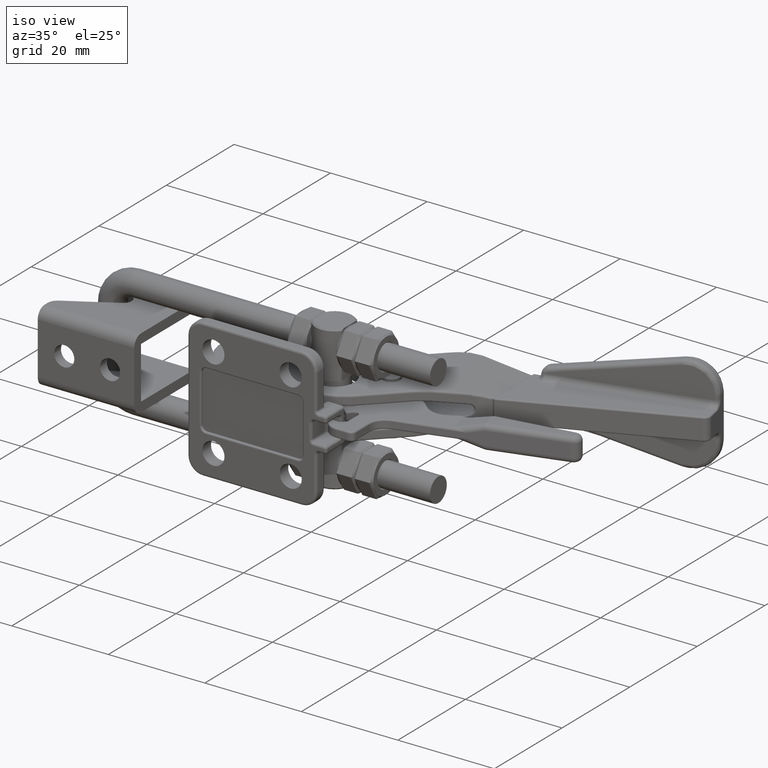
[diagram: clean part render]
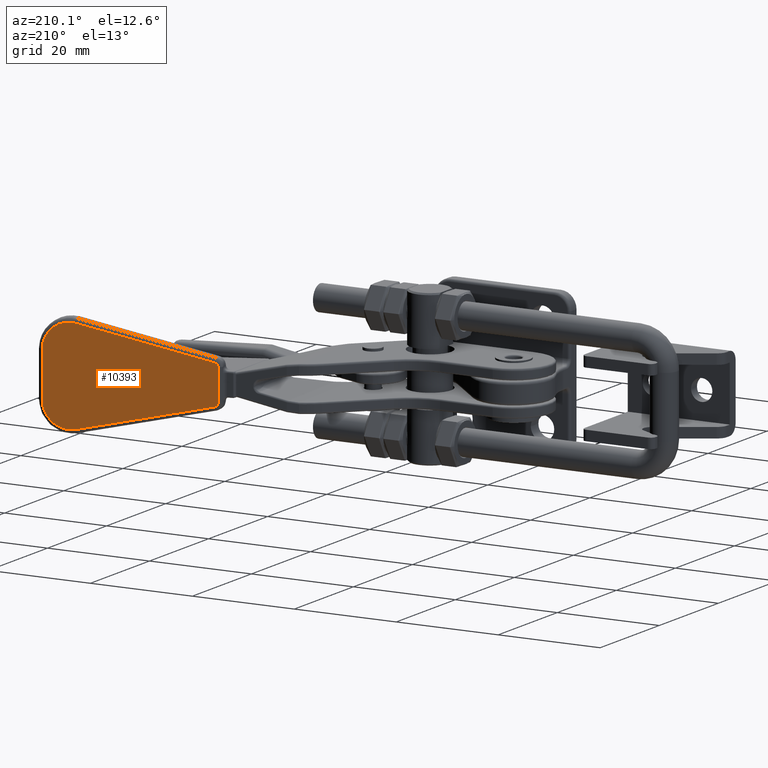
[diagram: tour spotlight — one face highlighted and labeled with its STEP entity id]
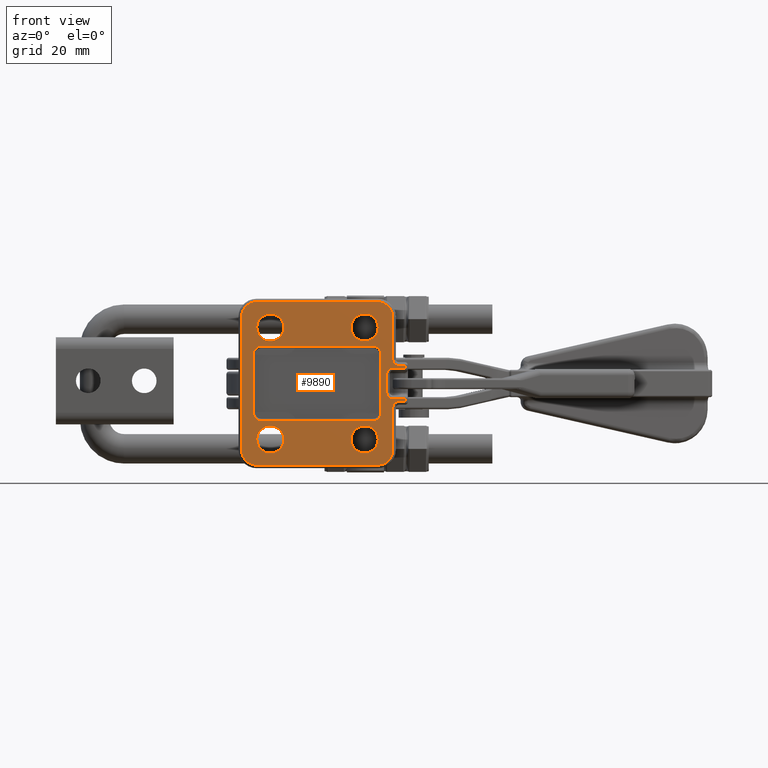
[diagram: tour spotlight — one face highlighted and labeled with its STEP entity id]
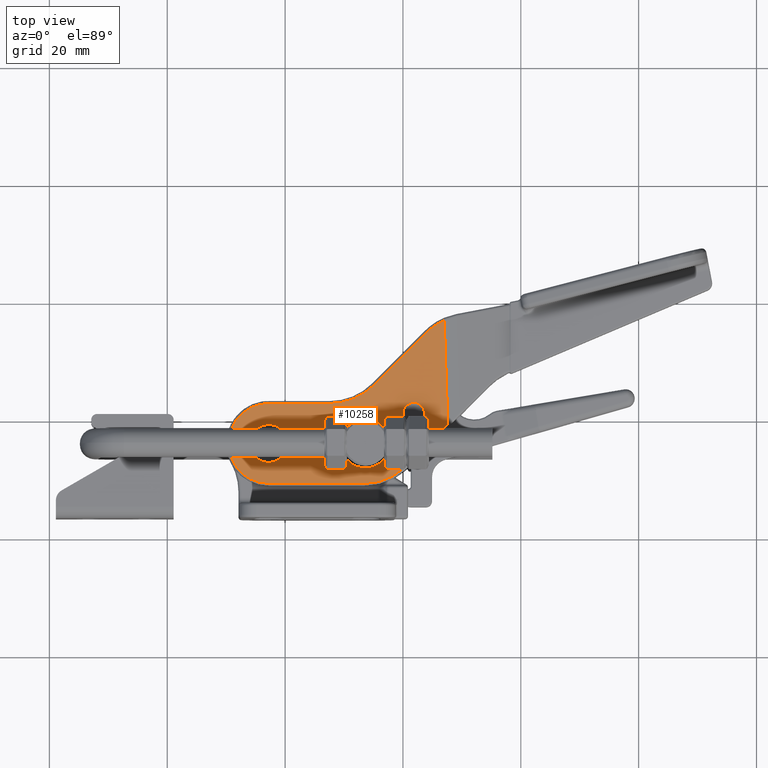
[diagram: tour spotlight — one face highlighted and labeled with its STEP entity id]
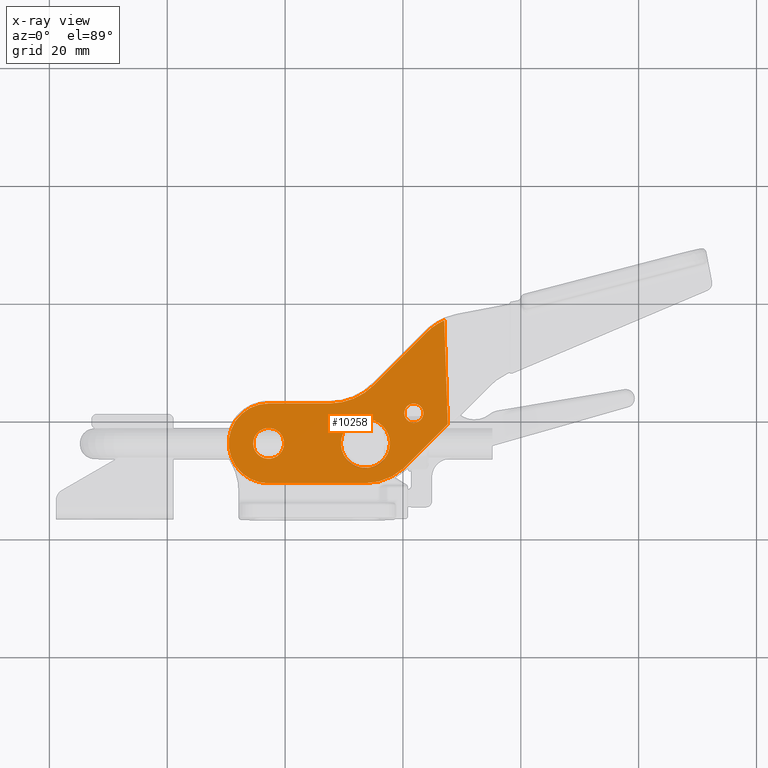
[diagram: x-ray of the same camera — body ghosted, this tour face saturated]
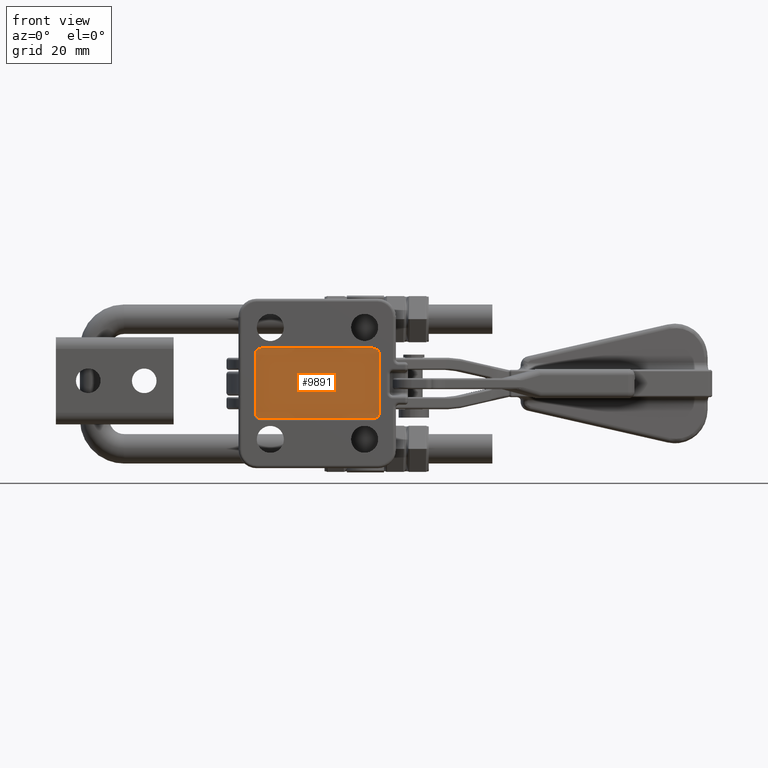
[diagram: tour spotlight — one face highlighted and labeled with its STEP entity id]
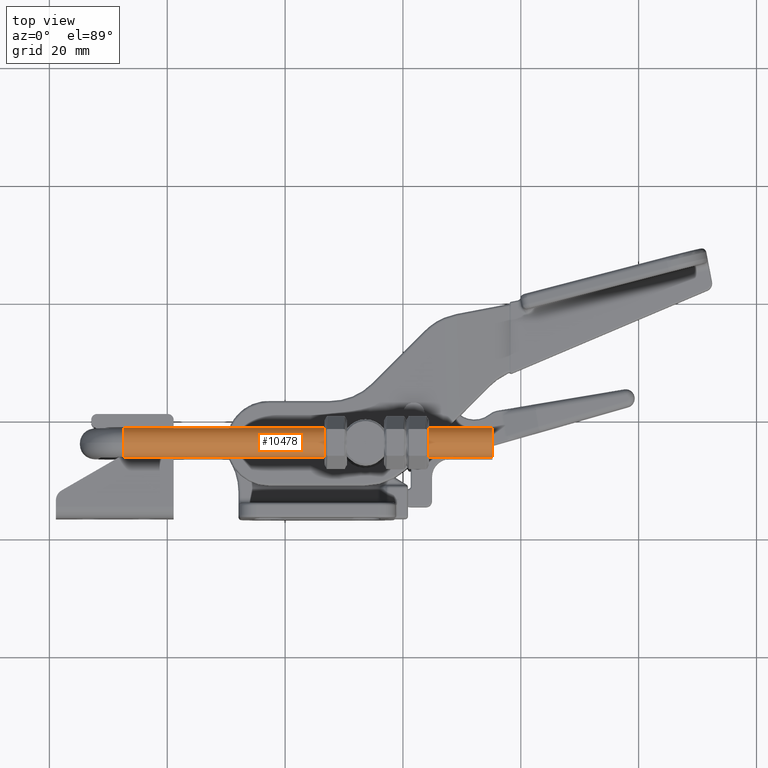
[diagram: tour spotlight — one face highlighted and labeled with its STEP entity id]
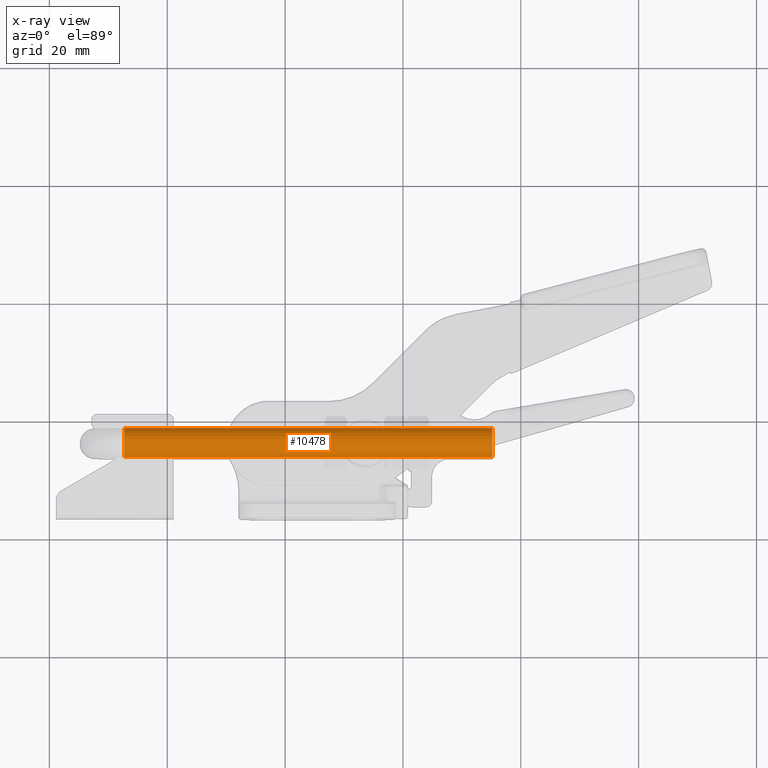
[diagram: x-ray of the same camera — body ghosted, this tour face saturated]
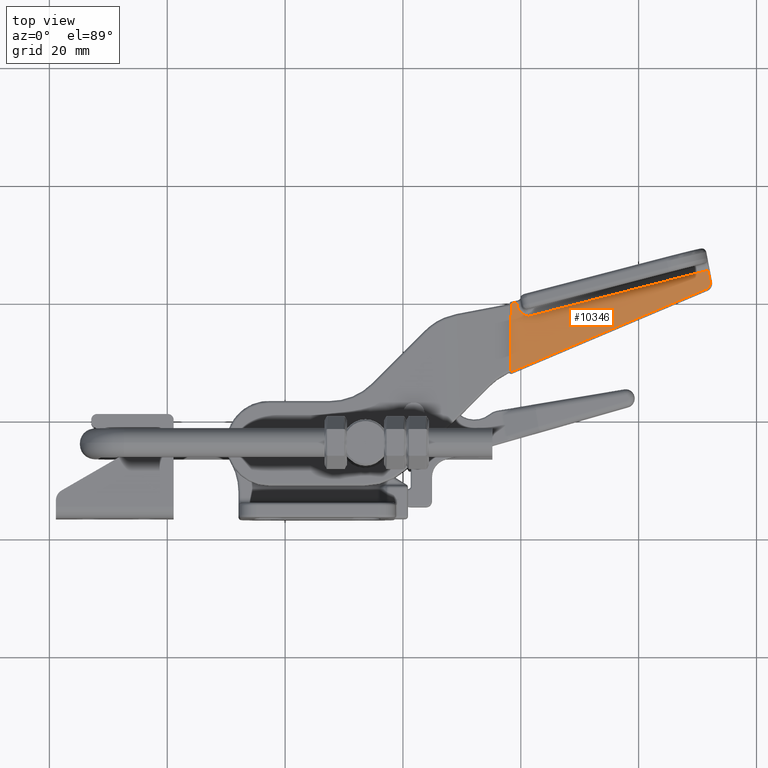
[diagram: tour spotlight — one face highlighted and labeled with its STEP entity id]
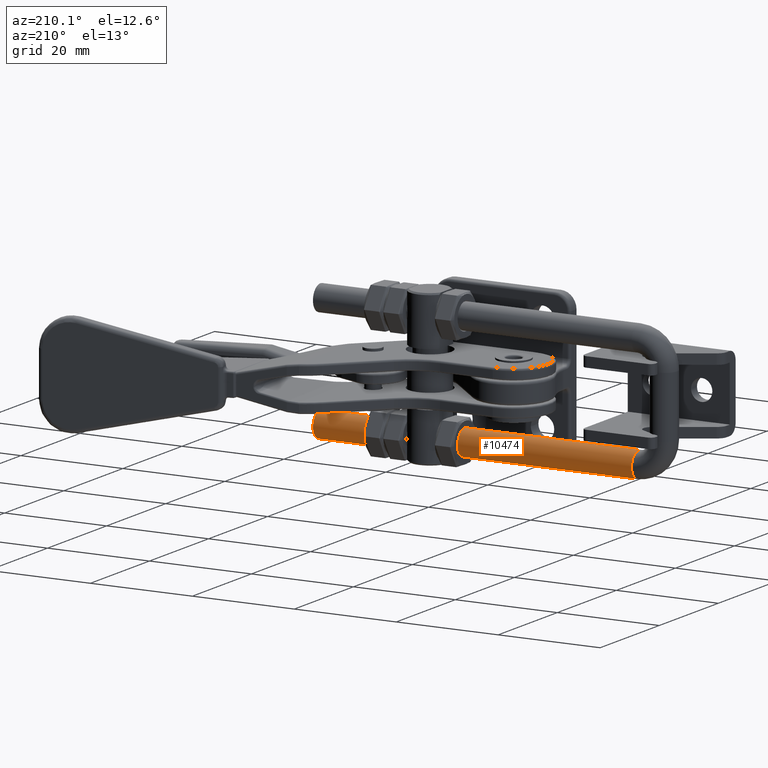
[diagram: tour spotlight — one face highlighted and labeled with its STEP entity id]
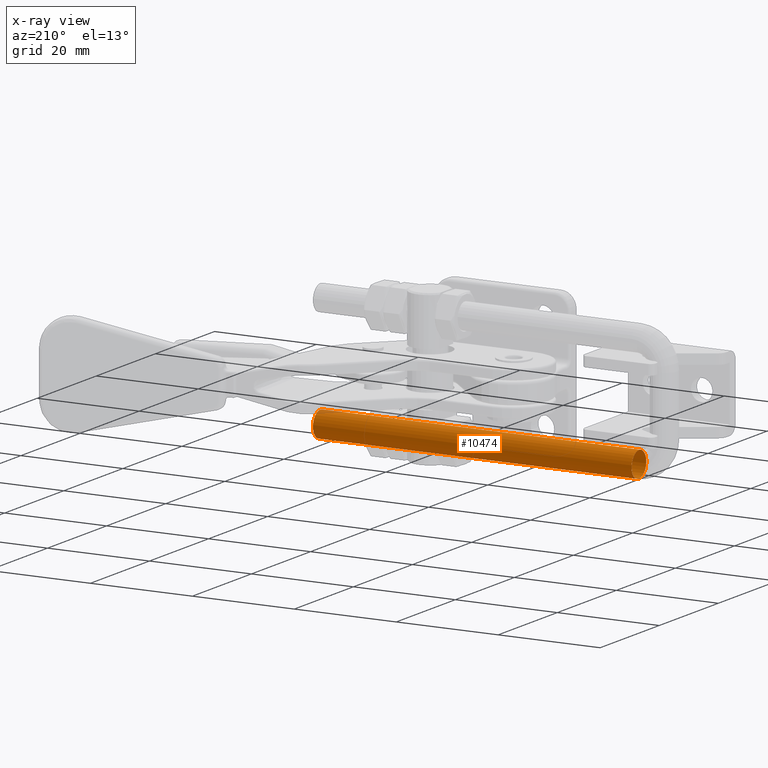
[diagram: x-ray of the same camera — body ghosted, this tour face saturated]
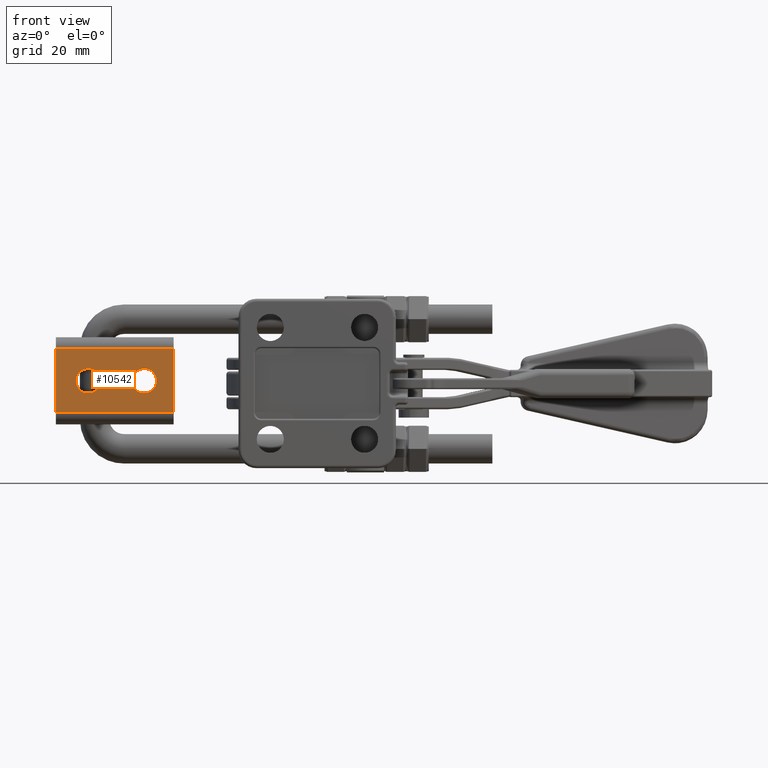
[diagram: tour spotlight — one face highlighted and labeled with its STEP entity id]
A machine part: a face-by-face anatomy tour. The part has 851 B-rep faces; the first image is the clean iso view, then the 8 largest visible faces are spotlighted one at a time (largest first), each with its STEP entity span.

Face 1 — auxiliary view, entity #10393. In plain terms, the highlighted planar face has unit normal (-0.2484, 0.9686, 0).
Definition (entity closure, byte-faithful):
#545=B_SPLINE_CURVE_WITH_KNOTS('',3,(#25739,#25740,#25741,#25742,#25743,
#25744),.UNSPECIFIED.,.F.,.F.,(4,1,1,4),(0.,0.3333333333333,0.6666666666667,
1.),.UNSPECIFIED.);
#546=B_SPLINE_CURVE_WITH_KNOTS('',3,(#25745,#25746,#25747,#25748,#25749,
#25750),.UNSPECIFIED.,.F.,.F.,(4,1,1,4),(0.,0.3333333333333,0.6666666666667,
1.),.UNSPECIFIED.);
#553=B_SPLINE_CURVE_WITH_KNOTS('',3,(#26180,#26181,#26182,#26183,#26184,
#26185,#26186,#26187,#26188,#26189,#26190,#26191),.UNSPECIFIED.,.F.,.F.,
(4,1,1,1,1,1,1,1,1,4),(0.,0.1111111111111,0.2222222222222,0.3333333333333,
0.4444444444444,0.5555555555556,0.6666666666667,0.7777777777778,0.8888888888889,
1.),.UNSPECIFIED.);
#555=B_SPLINE_CURVE_WITH_KNOTS('',3,(#26329,#26330,#26331,#26332,#26333,
#26334,#26335,#26336,#26337,#26338,#26339,#26340),.UNSPECIFIED.,.F.,.F.,
(4,1,1,1,1,1,1,1,1,4),(0.,0.1111111111111,0.2222222222222,0.3333333333333,
0.4444444444444,0.5555555555556,0.6666666666667,0.7777777777778,0.8888888888889,
1.),.UNSPECIFIED.);
#556=B_SPLINE_CURVE_WITH_KNOTS('',3,(#26348,#26349,#26350,#26351,#26352,
#26353),.UNSPECIFIED.,.F.,.F.,(4,1,1,4),(0.,0.3333333333333,0.6666666666667,
1.),.UNSPECIFIED.);
#557=B_SPLINE_CURVE_WITH_KNOTS('',3,(#26354,#26355,#26356,#26357,#26358,
#26359),.UNSPECIFIED.,.F.,.F.,(4,1,1,4),(0.,0.3333333333333,0.6666666666667,
1.),.UNSPECIFIED.);
#734=PLANE('',#11542);
#1289=LINE('',#25753,#1848);
#1298=LINE('',#26195,#1857);
#1300=LINE('',#26343,#1859);
#1301=LINE('',#26346,#1860);
#1848=VECTOR('',#14135,6.205709606196);
#1857=VECTOR('',#14176,8.915231730215);
#1859=VECTOR('',#14182,24.9996033311699);
#1860=VECTOR('',#14185,24.9996033311695);
#2578=FACE_OUTER_BOUND('',#3300,.T.);
#3300=EDGE_LOOP('',(#8934,#8935,#8936,#8937,#8938,#8939,#8940,#8941,#8942,
#8943));
#4838=VERTEX_POINT('',#25734);
#4839=VERTEX_POINT('',#25736);
#4840=VERTEX_POINT('',#25738);
#4841=VERTEX_POINT('',#25752);
#4851=VERTEX_POINT('',#26176);
#4852=VERTEX_POINT('',#26178);
#4853=VERTEX_POINT('',#26193);
#4854=VERTEX_POINT('',#26259);
#4856=VERTEX_POINT('',#26345);
#4857=VERTEX_POINT('',#26347);
#6231=EDGE_CURVE('',#4839,#4840,#545,.T.);
#6232=EDGE_CURVE('',#4840,#4838,#546,.T.);
#6233=EDGE_CURVE('',#4838,#4841,#1289,.T.);
#6256=EDGE_CURVE('',#4852,#4851,#553,.T.);
#6258=EDGE_CURVE('',#4851,#4853,#1298,.T.);
#6261=EDGE_CURVE('',#4853,#4854,#555,.T.);
#6263=EDGE_CURVE('',#4839,#4854,#1300,.T.);
#6264=EDGE_CURVE('',#4852,#4856,#1301,.T.);
#6265=EDGE_CURVE('',#4857,#4856,#556,.T.);
#6266=EDGE_CURVE('',#4841,#4857,#557,.T.);
#8934=ORIENTED_EDGE('',*,*,#6258,.F.);
#8935=ORIENTED_EDGE('',*,*,#6256,.F.);
#8936=ORIENTED_EDGE('',*,*,#6264,.T.);
#8937=ORIENTED_EDGE('',*,*,#6265,.F.);
#8938=ORIENTED_EDGE('',*,*,#6266,.F.);
#8939=ORIENTED_EDGE('',*,*,#6233,.F.);
#8940=ORIENTED_EDGE('',*,*,#6232,.F.);
#8941=ORIENTED_EDGE('',*,*,#6231,.F.);
#8942=ORIENTED_EDGE('',*,*,#6263,.T.);
#8943=ORIENTED_EDGE('',*,*,#6261,.F.);
#10393=ADVANCED_FACE('',(#2578),#734,.T.);
#11542=AXIS2_PLACEMENT_3D('',#26344,#14183,#14184);
#14135=DIRECTION('',(-3.66394320508E-14,0.,-1.));
#14176=DIRECTION('',(5.100791147641E-14,1.27519778691E-14,1.));
#14182=DIRECTION('',(0.953724541511109,0.209963296482202,0.215232230508702));
#14183=DIRECTION('center_axis',(-0.2150023287397,0.9766135359683,0.));
#14184=DIRECTION('ref_axis',(-0.976613535968291,-0.215002328739743,0.));
#14185=DIRECTION('',(-0.953724541511109,-0.209963296482202,0.215232230508702));
#25734=CARTESIAN_POINT('',(1294.203707634,678.2750870408,3.102854803098));
#25736=CARTESIAN_POINT('',(1294.793429006,678.4049147193,3.853888928728));
#25738=CARTESIAN_POINT('',(1294.31062710072,678.298624334203,3.49836711112144));
#25739=CARTESIAN_POINT('Ctrl Pts',(1294.793429006,678.4049147193,3.853888928728));
#25740=CARTESIAN_POINT('Ctrl Pts',(1294.725543339,678.38996963,3.83822234174));
#25741=CARTESIAN_POINT('Ctrl Pts',(1294.599176723,678.362149759,3.790933153587));
#25742=CARTESIAN_POINT('Ctrl Pts',(1294.430607172,678.3250396968,3.666829394027));
#25743=CARTESIAN_POINT('Ctrl Pts',(1294.346681956,678.3065618422,3.559250772353));
#25744=CARTESIAN_POINT('Ctrl Pts',(1294.3106271,678.298624334,3.498367111572));
#25745=CARTESIAN_POINT('Ctrl Pts',(1294.3106271,678.298624334,3.498367111572));
#25746=CARTESIAN_POINT('Ctrl Pts',(1294.28719504,678.2934657455,3.458199929736));
#25747=CARTESIAN_POINT('Ctrl Pts',(1294.248024531,678.2848439678,3.37531430414));
#25748=CARTESIAN_POINT('Ctrl Pts',(1294.211746112,678.2768565692,3.240725734051));
#25749=CARTESIAN_POINT('Ctrl Pts',(1294.203755219,678.2750975166,3.149372608545));
#25750=CARTESIAN_POINT('Ctrl Pts',(1294.203707634,678.2750870408,3.102854803098));
#25752=CARTESIAN_POINT('',(1294.203707634,678.2750870408,-3.102854803098));
#25753=CARTESIAN_POINT('',(1294.203707634,678.2750870408,3.102854803098));
#26176=CARTESIAN_POINT('',(1324.446250973,684.933009551,-4.457615865107));
#26178=CARTESIAN_POINT('',(1318.636164231,683.6539138454,-9.234609315496));
#26180=CARTESIAN_POINT('Ctrl Pts',(1318.636164231,683.6539138454,-9.234609315496));
#26181=CARTESIAN_POINT('Ctrl Pts',(1318.94475746,683.7218509162,-9.304106792659));
#26182=CARTESIAN_POINT('Ctrl Pts',(1319.56366299,683.8581035129,-9.37966972052));
#26183=CARTESIAN_POINT('Ctrl Pts',(1320.515314509,684.0676104317,-9.303925006798));
#26184=CARTESIAN_POINT('Ctrl Pts',(1321.435851229,684.2702674002,-9.035470265957));
#26185=CARTESIAN_POINT('Ctrl Pts',(1322.289225182,684.4581384263,-8.584370835339));
#26186=CARTESIAN_POINT('Ctrl Pts',(1323.038911247,684.6231824727,-7.967961852455));
#26187=CARTESIAN_POINT('Ctrl Pts',(1323.653029042,684.7583810453,-7.212689090528));
#26188=CARTESIAN_POINT('Ctrl Pts',(1324.10773807,684.8584856378,-6.350265852811));
#26189=CARTESIAN_POINT('Ctrl Pts',(1324.384940577,684.9195120133,-5.415577492062));
#26190=CARTESIAN_POINT('Ctrl Pts',(1324.446123866,684.9329815682,-4.780896795918));
#26191=CARTESIAN_POINT('Ctrl Pts',(1324.446250973,684.933009551,-4.457615865107));
#26193=CARTESIAN_POINT('',(1324.446250973,684.933009551,4.457615865108));
#26195=CARTESIAN_POINT('',(1324.446250973,684.933009551,-4.457615865107));
#26259=CARTESIAN_POINT('',(1318.636164231,683.6539138454,9.234609315497));
#26329=CARTESIAN_POINT('Ctrl Pts',(1324.446250973,684.933009551,4.457615865108));
#26330=CARTESIAN_POINT('Ctrl Pts',(1324.44612458,684.9329817255,4.780789427346));
#26331=CARTESIAN_POINT('Ctrl Pts',(1324.384979563,684.9195205962,5.415270880349));
#26332=CARTESIAN_POINT('Ctrl Pts',(1324.10795626,684.8585336723,6.349676835899));
#26333=CARTESIAN_POINT('Ctrl Pts',(1323.653514431,684.7584879042,7.211924195426));
#26334=CARTESIAN_POINT('Ctrl Pts',(1323.039688433,684.6233535709,7.967164606606));
#26335=CARTESIAN_POINT('Ctrl Pts',(1322.290239994,684.4583618379,8.583689909217));
#26336=CARTESIAN_POINT('Ctrl Pts',(1321.436966019,684.2705128222,9.035025327089));
#26337=CARTESIAN_POINT('Ctrl Pts',(1320.516319204,684.0678316162,9.303756910568));
#26338=CARTESIAN_POINT('Ctrl Pts',(1319.56430323,683.8582444623,9.379722564374));
#26339=CARTESIAN_POINT('Ctrl Pts',(1318.944997737,683.7219038135,9.304144522958));
#26340=CARTESIAN_POINT('Ctrl Pts',(1318.636164231,683.6539138454,9.234609315497));
#26343=CARTESIAN_POINT('',(1294.793429006,678.4049147193,3.853888928728));
#26344=CARTESIAN_POINT('Origin',(1318.831367871,683.6968880985,-56.485));
#26345=CARTESIAN_POINT('',(1294.793429006,678.4049147193,-3.853888928729));
#26346=CARTESIAN_POINT('',(1318.636164231,683.6539138454,-9.234609315496));
#26347=CARTESIAN_POINT('',(1294.31062710072,678.298624334199,-3.49836711112943));
#26348=CARTESIAN_POINT('Ctrl Pts',(1294.3106271,678.298624334,-3.49836711158));
#26349=CARTESIAN_POINT('Ctrl Pts',(1294.34668196,678.3065618431,-3.559250777064));
#26350=CARTESIAN_POINT('Ctrl Pts',(1294.430607182,678.3250396989,-3.666829404937));
#26351=CARTESIAN_POINT('Ctrl Pts',(1294.599176736,678.3621497619,-3.790933159346));
#26352=CARTESIAN_POINT('Ctrl Pts',(1294.725543344,678.3899696312,-3.838222344182));
#26353=CARTESIAN_POINT('Ctrl Pts',(1294.793429006,678.4049147193,-3.853888928729));
#26354=CARTESIAN_POINT('Ctrl Pts',(1294.203707634,678.2750870408,-3.102854803098));
#26355=CARTESIAN_POINT('Ctrl Pts',(1294.203755217,678.2750975161,-3.149372586404));
#26356=CARTESIAN_POINT('Ctrl Pts',(1294.211746105,678.2768565678,-3.240725682437));
#26357=CARTESIAN_POINT('Ctrl Pts',(1294.248024511,678.2848439633,-3.375314256545));
#26358=CARTESIAN_POINT('Ctrl Pts',(1294.287195031,678.2934657435,-3.458199909368));
#26359=CARTESIAN_POINT('Ctrl Pts',(1294.3106271,678.298624334,-3.49836711158));

Face 2 — front view, entity #9890. In plain terms, the highlighted planar face has unit normal (0, -1, 0).
Definition (entity closure, byte-faithful):
#640=PLANE('',#10602);
#866=LINE('',#14813,#1425);
#867=LINE('',#14824,#1426);
#869=LINE('',#14836,#1428);
#871=LINE('',#14848,#1430);
#880=LINE('',#14874,#1439);
#881=LINE('',#14878,#1440);
#882=LINE('',#14882,#1441);
#883=LINE('',#14886,#1442);
#884=LINE('',#14890,#1443);
#885=LINE('',#14894,#1444);
#886=LINE('',#14896,#1445);
#887=LINE('',#14898,#1446);
#888=LINE('',#14902,#1447);
#889=LINE('',#14906,#1448);
#890=LINE('',#14908,#1449);
#891=LINE('',#14910,#1450);
#1425=VECTOR('',#11814,10.);
#1426=VECTOR('',#11827,19.0535);
#1428=VECTOR('',#11841,10.);
#1430=VECTOR('',#11855,19.0535);
#1439=VECTOR('',#11884,7.18899995479731);
#1440=VECTOR('',#11887,20.5399999035333);
#1441=VECTOR('',#11890,22.5939999480078);
#1442=VECTOR('',#11893,20.5399999267333);
#1443=VECTOR('',#11896,7.18899960401318);
#1444=VECTOR('',#11899,1.02700021938858);
#1445=VECTOR('',#11900,0.513499930205089);
#1446=VECTOR('',#11901,2.05400088571324);
#1447=VECTOR('',#11904,3.08100009785996);
#1448=VECTOR('',#11907,2.05400087945989);
#1449=VECTOR('',#11908,0.513499932380228);
#1450=VECTOR('',#11909,1.02700023325355);
#1987=FACE_BOUND('',#2756,.T.);
#1988=FACE_BOUND('',#2757,.T.);
#1989=FACE_BOUND('',#2758,.T.);
#1990=FACE_BOUND('',#2759,.T.);
#1991=FACE_BOUND('',#2760,.T.);
#2075=FACE_OUTER_BOUND('',#2755,.T.);
#2755=EDGE_LOOP('',(#6609,#6610,#6611,#6612,#6613,#6614,#6615,#6616,#6617,
#6618,#6619,#6620,#6621,#6622,#6623,#6624,#6625,#6626,#6627,#6628));
#2756=EDGE_LOOP('',(#6629));
#2757=EDGE_LOOP('',(#6630));
#2758=EDGE_LOOP('',(#6631));
#2759=EDGE_LOOP('',(#6632));
#2760=EDGE_LOOP('',(#6633,#6634,#6635,#6636,#6637,#6638,#6639,#6640));
#3487=CIRCLE('',#10561,2.3);
#3489=CIRCLE('',#10564,2.3);
#3491=CIRCLE('',#10567,2.3);
#3493=CIRCLE('',#10570,2.3);
#3498=CIRCLE('',#10577,1.3);
#3502=CIRCLE('',#10583,1.3);
#3506=CIRCLE('',#10589,1.3);
#3509=CIRCLE('',#10594,1.3);
#3513=CIRCLE('',#10603,2.5675);
#3514=CIRCLE('',#10604,2.5675);
#3515=CIRCLE('',#10605,2.5675);
#3516=CIRCLE('',#10606,2.5675);
#3517=CIRCLE('',#10607,1.027);
#3518=CIRCLE('',#10608,1.027);
#3519=CIRCLE('',#10609,1.027);
#3520=CIRCLE('',#10610,1.027);
#4111=VERTEX_POINT('',#14786);
#4113=VERTEX_POINT('',#14791);
#4115=VERTEX_POINT('',#14796);
#4117=VERTEX_POINT('',#14801);
#4119=VERTEX_POINT('',#14806);
#4122=VERTEX_POINT('',#14811);
#4124=VERTEX_POINT('',#14816);
#4126=VERTEX_POINT('',#14822);
#4128=VERTEX_POINT('',#14828);
#4130=VERTEX_POINT('',#14834);
#4132=VERTEX_POINT('',#14840);
#4134=VERTEX_POINT('',#14846);
#4140=VERTEX_POINT('',#14872);
#4141=VERTEX_POINT('',#14873);
#4142=VERTEX_POINT('',#14875);
#4143=VERTEX_POINT('',#14877);
#4144=VERTEX_POINT('',#14879);
#4145=VERTEX_POINT('',#14881);
#4146=VERTEX_POINT('',#14883);
#4147=VERTEX_POINT('',#14885);
#4148=VERTEX_POINT('',#14887);
#4149=VERTEX_POINT('',#14889);
#4150=VERTEX_POINT('',#14891);
#4151=VERTEX_POINT('',#14893);
#4152=VERTEX_POINT('',#14895);
#4153=VERTEX_POINT('',#14897);
#4154=VERTEX_POINT('',#14899);
#4155=VERTEX_POINT('',#14901);
#4156=VERTEX_POINT('',#14903);
#4157=VERTEX_POINT('',#14905);
#4158=VERTEX_POINT('',#14907);
#4159=VERTEX_POINT('',#14909);
#5024=EDGE_CURVE('',#4111,#4111,#3487,.T.);
#5026=EDGE_CURVE('',#4113,#4113,#3489,.T.);
#5028=EDGE_CURVE('',#4115,#4115,#3491,.T.);
#5030=EDGE_CURVE('',#4117,#4117,#3493,.T.);
#5035=EDGE_CURVE('',#4122,#4119,#866,.T.);
#5037=EDGE_CURVE('',#4124,#4122,#3498,.T.);
#5040=EDGE_CURVE('',#4126,#4124,#867,.T.);
#5043=EDGE_CURVE('',#4128,#4126,#3502,.T.);
#5046=EDGE_CURVE('',#4130,#4128,#869,.T.);
#5049=EDGE_CURVE('',#4132,#4130,#3506,.T.);
#5052=EDGE_CURVE('',#4134,#4132,#871,.T.);
#5054=EDGE_CURVE('',#4119,#4134,#3509,.T.);
#5065=EDGE_CURVE('',#4140,#4141,#880,.T.);
#5066=EDGE_CURVE('',#4140,#4142,#3513,.T.);
#5067=EDGE_CURVE('',#4143,#4142,#881,.T.);
#5068=EDGE_CURVE('',#4143,#4144,#3514,.T.);
#5069=EDGE_CURVE('',#4145,#4144,#882,.T.);
#5070=EDGE_CURVE('',#4145,#4146,#3515,.T.);
#5071=EDGE_CURVE('',#4147,#4146,#883,.T.);
#5072=EDGE_CURVE('',#4147,#4148,#3516,.T.);
#5073=EDGE_CURVE('',#4149,#4148,#884,.T.);
#5074=EDGE_CURVE('',#4149,#4150,#3517,.T.);
#5075=EDGE_CURVE('',#4151,#4150,#885,.T.);
#5076=EDGE_CURVE('',#4152,#4151,#886,.T.);
#5077=EDGE_CURVE('',#4153,#4152,#887,.T.);
#5078=EDGE_CURVE('',#4153,#4154,#3518,.T.);
#5079=EDGE_CURVE('',#4155,#4154,#888,.T.);
#5080=EDGE_CURVE('',#4155,#4156,#3519,.T.);
#5081=EDGE_CURVE('',#4157,#4156,#889,.T.);
#5082=EDGE_CURVE('',#4158,#4157,#890,.T.);
#5083=EDGE_CURVE('',#4159,#4158,#891,.T.);
#5084=EDGE_CURVE('',#4159,#4141,#3520,.T.);
#6609=ORIENTED_EDGE('',*,*,#5065,.F.);
#6610=ORIENTED_EDGE('',*,*,#5066,.T.);
#6611=ORIENTED_EDGE('',*,*,#5067,.F.);
#6612=ORIENTED_EDGE('',*,*,#5068,.T.);
#6613=ORIENTED_EDGE('',*,*,#5069,.F.);
#6614=ORIENTED_EDGE('',*,*,#5070,.T.);
#6615=ORIENTED_EDGE('',*,*,#5071,.F.);
#6616=ORIENTED_EDGE('',*,*,#5072,.T.);
#6617=ORIENTED_EDGE('',*,*,#5073,.F.);
#6618=ORIENTED_EDGE('',*,*,#5074,.T.);
#6619=ORIENTED_EDGE('',*,*,#5075,.F.);
#6620=ORIENTED_EDGE('',*,*,#5076,.F.);
#6621=ORIENTED_EDGE('',*,*,#5077,.F.);
#6622=ORIENTED_EDGE('',*,*,#5078,.T.);
#6623=ORIENTED_EDGE('',*,*,#5079,.F.);
#6624=ORIENTED_EDGE('',*,*,#5080,.T.);
#6625=ORIENTED_EDGE('',*,*,#5081,.F.);
#6626=ORIENTED_EDGE('',*,*,#5082,.F.);
#6627=ORIENTED_EDGE('',*,*,#5083,.F.);
#6628=ORIENTED_EDGE('',*,*,#5084,.T.);
#6629=ORIENTED_EDGE('',*,*,#5024,.T.);
#6630=ORIENTED_EDGE('',*,*,#5026,.T.);
#6631=ORIENTED_EDGE('',*,*,#5028,.T.);
#6632=ORIENTED_EDGE('',*,*,#5030,.T.);
#6633=ORIENTED_EDGE('',*,*,#5035,.F.);
#6634=ORIENTED_EDGE('',*,*,#5037,.F.);
#6635=ORIENTED_EDGE('',*,*,#5040,.F.);
#6636=ORIENTED_EDGE('',*,*,#5043,.F.);
#6637=ORIENTED_EDGE('',*,*,#5046,.F.);
#6638=ORIENTED_EDGE('',*,*,#5049,.F.);
#6639=ORIENTED_EDGE('',*,*,#5052,.F.);
#6640=ORIENTED_EDGE('',*,*,#5054,.F.);
#9890=ADVANCED_FACE('',(#2075,#1987,#1988,#1989,#1990,#1991),#640,.T.);
#10561=AXIS2_PLACEMENT_3D('',#14787,#11785,#11786);
#10564=AXIS2_PLACEMENT_3D('',#14792,#11791,#11792);
#10567=AXIS2_PLACEMENT_3D('',#14797,#11797,#11798);
#10570=AXIS2_PLACEMENT_3D('',#14802,#11803,#11804);
#10577=AXIS2_PLACEMENT_3D('',#14818,#11819,#11820);
#10583=AXIS2_PLACEMENT_3D('',#14830,#11833,#11834);
#10589=AXIS2_PLACEMENT_3D('',#14842,#11847,#11848);
#10594=AXIS2_PLACEMENT_3D('',#14851,#11859,#11860);
#10602=AXIS2_PLACEMENT_3D('',#14871,#11882,#11883);
#10603=AXIS2_PLACEMENT_3D('',#14876,#11885,#11886);
#10604=AXIS2_PLACEMENT_3D('',#14880,#11888,#11889);
#10605=AXIS2_PLACEMENT_3D('',#14884,#11891,#11892);
#10606=AXIS2_PLACEMENT_3D('',#14888,#11894,#11895);
#10607=AXIS2_PLACEMENT_3D('',#14892,#11897,#11898);
#10608=AXIS2_PLACEMENT_3D('',#14900,#11902,#11903);
#10609=AXIS2_PLACEMENT_3D('',#14904,#11905,#11906);
#10610=AXIS2_PLACEMENT_3D('',#14911,#11910,#11911);
#11785=DIRECTION('center_axis',(0.,1.,0.));
#11786=DIRECTION('ref_axis',(1.,0.,0.));
#11791=DIRECTION('center_axis',(0.,1.,0.));
#11792=DIRECTION('ref_axis',(1.,0.,0.));
#11797=DIRECTION('center_axis',(0.,1.,0.));
#11798=DIRECTION('ref_axis',(1.,0.,0.));
#11803=DIRECTION('center_axis',(0.,1.,0.));
#11804=DIRECTION('ref_axis',(1.,0.,0.));
#11814=DIRECTION('',(3.41520604434946E-12,0.,1.));
#11819=DIRECTION('center_axis',(0.,-1.,0.));
#11820=DIRECTION('ref_axis',(0.70710678118415,0.,-0.707106781188945));
#11827=DIRECTION('',(1.,0.,-3.41520604434946E-12));
#11833=DIRECTION('center_axis',(0.,-1.,0.));
#11834=DIRECTION('ref_axis',(-0.707106781188979,0.,-0.707106781184116));
#11841=DIRECTION('',(-3.41520604434946E-12,0.,-1.));
#11847=DIRECTION('center_axis',(0.,-1.,0.));
#11848=DIRECTION('ref_axis',(-0.70710678118415,0.,0.707106781188945));
#11855=DIRECTION('',(-1.,0.,3.41520604434946E-12));
#11859=DIRECTION('center_axis',(0.,-1.,0.));
#11860=DIRECTION('ref_axis',(0.707106781188979,0.,0.707106781184116));
#11882=DIRECTION('center_axis',(0.,-1.,0.));
#11883=DIRECTION('ref_axis',(0.,0.,-1.));
#11884=DIRECTION('',(0.,0.,-1.));
#11885=DIRECTION('center_axis',(0.,-1.,0.));
#11886=DIRECTION('ref_axis',(0.999999999997593,0.,-2.19425383750598E-6));
#11887=DIRECTION('',(1.,0.,0.));
#11888=DIRECTION('center_axis',(0.,-1.,0.));
#11889=DIRECTION('ref_axis',(1.75157565483094E-6,0.,0.999999999998466));
#11890=DIRECTION('',(0.,0.,1.));
#11891=DIRECTION('center_axis',(0.,-1.,0.));
#11892=DIRECTION('ref_axis',(-1.,0.,1.986819805291E-8));
#11893=DIRECTION('',(-1.,0.,0.));
#11894=DIRECTION('center_axis',(0.,-1.,0.));
#11895=DIRECTION('ref_axis',(-1.75157565483094E-6,0.,-0.999999999998466));
#11896=DIRECTION('',(0.,0.,-1.));
#11897=DIRECTION('center_axis',(0.,1.,0.));
#11898=DIRECTION('ref_axis',(-0.999999999993216,0.,3.68337613401506E-6));
#11899=DIRECTION('',(-1.,0.,-1.800558259628E-8));
#11900=DIRECTION('',(-9.12799775829685E-7,0.,-0.999999999999583));
#11901=DIRECTION('',(1.,0.,-1.583246749658E-8));
#11902=DIRECTION('center_axis',(0.,1.,0.));
#11903=DIRECTION('ref_axis',(7.1954469646463E-7,0.,-0.999999999999741));
#11904=DIRECTION('',(0.,0.,-1.));
#11905=DIRECTION('center_axis',(0.,1.,0.));
#11906=DIRECTION('ref_axis',(-0.999999999995945,0.,2.84784327895113E-6));
#11907=DIRECTION('',(-1.,0.,-1.583246919621E-8));
#11908=DIRECTION('',(8.64274635583823E-7,0.,-0.999999999999627));
#11909=DIRECTION('',(1.,0.,-1.377400933011E-8));
#11910=DIRECTION('center_axis',(0.,1.,0.));
#11911=DIRECTION('ref_axis',(-8.18306123933072E-7,0.,-0.999999999999665));
#14786=CARTESIAN_POINT('',(1247.97866919,641.5683747938,9.49999988905));
#14787=CARTESIAN_POINT('Origin',(1250.27866919,641.5683747938,9.49999988905));
#14791=CARTESIAN_POINT('',(1247.97866919,641.5683747938,-9.50000011095));
#14792=CARTESIAN_POINT('Origin',(1250.27866919,641.5683747938,-9.50000011095));
#14796=CARTESIAN_POINT('',(1263.97866919,641.5683747938,-9.50000011095));
#14797=CARTESIAN_POINT('Origin',(1266.27866919,641.5683747938,-9.50000011095));
#14801=CARTESIAN_POINT('',(1263.97866919,641.5683747938,9.49999988905));
#14802=CARTESIAN_POINT('Origin',(1266.27866919,641.5683747938,9.49999988905));
#14806=CARTESIAN_POINT('',(1269.05641918998,641.5683747938,5.00000002616085));
#14811=CARTESIAN_POINT('',(1269.05641918995,641.5683747938,-4.99999997383915));
#14813=CARTESIAN_POINT('',(1269.05641918998,641.5683747938,2.5000000130444));
#14816=CARTESIAN_POINT('',(1267.75641918995,641.5683747938,-6.29999997383471));
#14818=CARTESIAN_POINT('Origin',(1267.75641918995,641.5683747938,-4.99999997383471));
#14822=CARTESIAN_POINT('',(1248.70291918995,641.5683747938,-6.29999997376964));
#14824=CARTESIAN_POINT('',(1257.85804418996,641.5683747938,-6.29999997380091));
#14828=CARTESIAN_POINT('',(1247.40291918995,641.5683747938,-4.9999999737652));
#14830=CARTESIAN_POINT('Origin',(1248.70291918995,641.5683747938,-4.99999997376964));
#14834=CARTESIAN_POINT('',(1247.40291918998,641.5683747938,5.0000000262348));
#14836=CARTESIAN_POINT('',(1247.40291918996,641.5683747938,-2.49999998688165));
#14840=CARTESIAN_POINT('',(1248.70291918999,641.5683747938,6.30000002623036));
#14842=CARTESIAN_POINT('Origin',(1248.70291918998,641.5683747938,5.00000002623036));
#14846=CARTESIAN_POINT('',(1267.75641918999,641.5683747938,6.30000002616529));
#14848=CARTESIAN_POINT('',(1248.33129419,641.5683747938,6.30000002623163));
#14851=CARTESIAN_POINT('Origin',(1267.75641918998,641.5683747938,5.00000002616529));
#14871=CARTESIAN_POINT('Origin',(1247.95966919,641.5683747938,0.));
#14872=CARTESIAN_POINT('',(1271.06716937401,641.5683747938,11.296999900526));
#14873=CARTESIAN_POINT('',(1271.06716937403,641.5683747938,4.10799994572869));
#14874=CARTESIAN_POINT('',(1271.067169558,641.5683747938,11.29699808587));
#14875=CARTESIAN_POINT('',(1268.49966915534,641.5683747938,13.8645001479347));
#14876=CARTESIAN_POINT('Origin',(1268.49966919,641.5683747938,11.297));
#14877=CARTESIAN_POINT('',(1247.95966925181,641.5683747938,13.8645001479425));
#14878=CARTESIAN_POINT('',(1247.959670705,641.5683747938,13.86450029587));
#14879=CARTESIAN_POINT('',(1245.39216919,641.5683747938,11.297));
#14880=CARTESIAN_POINT('Origin',(1247.95966919,641.5683747938,11.297));
#14881=CARTESIAN_POINT('',(1245.39216919,641.5683747938,-11.2969999480078));
#14882=CARTESIAN_POINT('',(1245.39216919,641.5683747938,-11.29699994678));
#14883=CARTESIAN_POINT('',(1247.95966922467,641.5683747938,-13.8645001479347));
#14884=CARTESIAN_POINT('Origin',(1247.95966919,641.5683747938,-11.297));
#14885=CARTESIAN_POINT('',(1268.4996691514,641.5683747938,-13.8645001479425));
#14886=CARTESIAN_POINT('',(1268.499667706,641.5683747938,-13.86450029587));
#14887=CARTESIAN_POINT('',(1271.067169374,641.5683747938,-11.2969999569703));
#14888=CARTESIAN_POINT('Origin',(1268.49966919,641.5683747938,-11.297));
#14889=CARTESIAN_POINT('',(1271.06716937401,641.5683747938,-4.10800035295716));
#14890=CARTESIAN_POINT('',(1271.067169558,641.5683747938,-4.107998957001));
#14891=CARTESIAN_POINT('',(1272.09416918029,641.5683747938,-3.08100003698316));
#14892=CARTESIAN_POINT('Origin',(1272.09416919,641.5683747938,-4.108));
#14893=CARTESIAN_POINT('',(1273.12116939968,641.5683747938,-3.08100002776468));
#14894=CARTESIAN_POINT('',(1273.121169609,641.5683747938,-3.081000055475));
#14895=CARTESIAN_POINT('',(1273.121170078,641.5683747938,-2.56750009756));
#14896=CARTESIAN_POINT('',(1273.121170078,641.5683747938,-2.56750009756));
#14897=CARTESIAN_POINT('',(1271.06716919229,641.5683747938,-2.56750003256461));
#14898=CARTESIAN_POINT('',(1271.067169216,641.5683747938,-2.56750006504));
#14899=CARTESIAN_POINT('',(1270.0401693175,641.5683747938,-1.54050003350079));
#14900=CARTESIAN_POINT('Origin',(1271.06716919,641.5683747938,-1.5405));
#14901=CARTESIAN_POINT('',(1270.04016931752,641.5683747938,1.54050006435918));
#14902=CARTESIAN_POINT('',(1270.040169445,641.5683747938,1.540500989868));
#14903=CARTESIAN_POINT('',(1271.06716919854,641.5683747938,2.56750003251986));
#14904=CARTESIAN_POINT('Origin',(1271.06716919,641.5683747938,1.5405));
#14905=CARTESIAN_POINT('',(1273.121170078,641.5683747938,2.56750009756));
#14906=CARTESIAN_POINT('',(1273.121170078,641.5683747938,2.56750009756));
#14907=CARTESIAN_POINT('',(1273.12116941222,641.5683747938,3.08100002993984));
#14908=CARTESIAN_POINT('',(1273.121169634,641.5683747938,3.081000059821));
#14909=CARTESIAN_POINT('',(1272.09416917897,641.5683747938,3.08100003698538));
#14910=CARTESIAN_POINT('',(1272.094168766,641.5683747938,3.081000073967));
#14911=CARTESIAN_POINT('Origin',(1272.09416919,641.5683747938,4.108));

Face 3 — top view, entity #10258. An x-ray twin of the same camera follows (body ghosted, this face saturated) — the face is partly hidden behind the body. In plain terms, the highlighted planar face has unit normal (0, -0, 1).
Definition (entity closure, byte-faithful):
#713=PLANE('',#11305);
#1183=LINE('',#22512,#1742);
#1184=LINE('',#22520,#1743);
#1185=LINE('',#22522,#1744);
#1186=LINE('',#22526,#1745);
#1187=LINE('',#22530,#1746);
#1188=LINE('',#22534,#1747);
#1742=VECTOR('',#13589,9.69376210355189);
#1743=VECTOR('',#13594,0.822680856279754);
#1744=VECTOR('',#13595,17.638055999204);
#1745=VECTOR('',#13598,12.647788644482);
#1746=VECTOR('',#13601,10.3304641141323);
#1747=VECTOR('',#13604,16.286026714554);
#2023=FACE_BOUND('',#3160,.T.);
#2024=FACE_BOUND('',#3161,.T.);
#2025=FACE_BOUND('',#3162,.T.);
#2443=FACE_OUTER_BOUND('',#3159,.T.);
#3159=EDGE_LOOP('',(#8297,#8298,#8299,#8300,#8301,#8302,#8303,#8304,#8305,
#8306));
#3160=EDGE_LOOP('',(#8307));
#3161=EDGE_LOOP('',(#8308));
#3162=EDGE_LOOP('',(#8309));
#3881=CIRCLE('',#11306,9.8592);
#3882=CIRCLE('',#11307,10.6808);
#3883=CIRCLE('',#11308,6.7782);
#3884=CIRCLE('',#11309,9.8592);
#3885=CIRCLE('',#11310,4.15935);
#3886=CIRCLE('',#11311,1.625351069519);
#3887=CIRCLE('',#11312,2.61885);
#4656=VERTEX_POINT('',#22510);
#4657=VERTEX_POINT('',#22511);
#4658=VERTEX_POINT('',#22519);
#4659=VERTEX_POINT('',#22521);
#4660=VERTEX_POINT('',#22523);
#4661=VERTEX_POINT('',#22525);
#4662=VERTEX_POINT('',#22527);
#4663=VERTEX_POINT('',#22529);
#4664=VERTEX_POINT('',#22531);
#4665=VERTEX_POINT('',#22533);
#4666=VERTEX_POINT('',#22536);
#4667=VERTEX_POINT('',#22538);
#4668=VERTEX_POINT('',#22540);
#5922=EDGE_CURVE('',#4656,#4657,#1183,.T.);
#5925=EDGE_CURVE('',#4657,#4658,#1184,.T.);
#5926=EDGE_CURVE('',#4659,#4658,#1185,.T.);
#5927=EDGE_CURVE('',#4659,#4660,#3881,.T.);
#5928=EDGE_CURVE('',#4660,#4661,#1186,.T.);
#5929=EDGE_CURVE('',#4661,#4662,#3882,.T.);
#5930=EDGE_CURVE('',#4662,#4663,#1187,.T.);
#5931=EDGE_CURVE('',#4663,#4664,#3883,.T.);
#5932=EDGE_CURVE('',#4664,#4665,#1188,.T.);
#5933=EDGE_CURVE('',#4665,#4656,#3884,.T.);
#5934=EDGE_CURVE('',#4666,#4666,#3885,.T.);
#5935=EDGE_CURVE('',#4667,#4667,#3886,.T.);
#5936=EDGE_CURVE('',#4668,#4668,#3887,.T.);
#8297=ORIENTED_EDGE('',*,*,#5922,.T.);
#8298=ORIENTED_EDGE('',*,*,#5925,.T.);
#8299=ORIENTED_EDGE('',*,*,#5926,.F.);
#8300=ORIENTED_EDGE('',*,*,#5927,.T.);
#8301=ORIENTED_EDGE('',*,*,#5928,.T.);
#8302=ORIENTED_EDGE('',*,*,#5929,.T.);
#8303=ORIENTED_EDGE('',*,*,#5930,.T.);
#8304=ORIENTED_EDGE('',*,*,#5931,.T.);
#8305=ORIENTED_EDGE('',*,*,#5932,.T.);
#8306=ORIENTED_EDGE('',*,*,#5933,.T.);
#8307=ORIENTED_EDGE('',*,*,#5934,.T.);
#8308=ORIENTED_EDGE('',*,*,#5935,.T.);
#8309=ORIENTED_EDGE('',*,*,#5936,.T.);
#10258=ADVANCED_FACE('',(#2443,#2023,#2024,#2025),#713,.T.);
#11305=AXIS2_PLACEMENT_3D('',#22518,#13592,#13593);
#11306=AXIS2_PLACEMENT_3D('',#22524,#13596,#13597);
#11307=AXIS2_PLACEMENT_3D('',#22528,#13599,#13600);
#11308=AXIS2_PLACEMENT_3D('',#22532,#13602,#13603);
#11309=AXIS2_PLACEMENT_3D('',#22535,#13605,#13606);
#11310=AXIS2_PLACEMENT_3D('',#22537,#13607,#13608);
#11311=AXIS2_PLACEMENT_3D('',#22539,#13609,#13610);
#11312=AXIS2_PLACEMENT_3D('',#22541,#13611,#13612);
#13589=DIRECTION('',(0.731551076849535,0.681786639617033,0.));
#13592=DIRECTION('center_axis',(0.,0.,1.));
#13593=DIRECTION('ref_axis',(1.,0.,0.));
#13594=DIRECTION('',(0.730995734668293,0.682382030754593,0.));
#13595=DIRECTION('',(-6.868756714416E-10,-1.,0.));
#13596=DIRECTION('center_axis',(0.,0.,1.));
#13597=DIRECTION('ref_axis',(-0.372943726851002,0.927853962971806,0.));
#13598=DIRECTION('',(-0.730995680264583,-0.682382089034084,0.));
#13599=DIRECTION('center_axis',(0.,0.,-1.));
#13600=DIRECTION('ref_axis',(0.682382089031911,-0.730995680266611,0.));
#13601=DIRECTION('',(-0.999409005049403,0.0343750000169001,0.));
#13602=DIRECTION('center_axis',(0.,0.,1.));
#13603=DIRECTION('ref_axis',(0.0343750000168602,0.999409005049405,0.));
#13604=DIRECTION('',(0.999409005049403,-0.0343750000169101,0.));
#13605=DIRECTION('center_axis',(0.,0.,1.));
#13606=DIRECTION('ref_axis',(-0.0343750000177291,-0.999409005049375,0.));
#13607=DIRECTION('center_axis',(0.,0.,-1.));
#13608=DIRECTION('ref_axis',(1.,0.,0.));
#13609=DIRECTION('center_axis',(0.,0.,-1.));
#13610=DIRECTION('ref_axis',(1.,0.,0.));
#13611=DIRECTION('center_axis',(0.,0.,-1.));
#13612=DIRECTION('ref_axis',(1.,0.,0.));
#22510=CARTESIAN_POINT('',(1272.83000306846,649.454801715384,4.36475));
#22511=CARTESIAN_POINT('',(1279.921485161,656.0638792192,4.36475));
#22512=CARTESIAN_POINT('',(1272.830002574,649.4548012811,4.36475));
#22518=CARTESIAN_POINT('Origin',(1243.13276919,717.8339134774,4.36475));
#22519=CARTESIAN_POINT('',(1280.522861358,656.6252618525,4.36475));
#22520=CARTESIAN_POINT('',(1279.921485161,656.0638792192,4.36475));
#22521=CARTESIAN_POINT('',(1280.52286136645,674.263317851704,4.36475000000001));
#22522=CARTESIAN_POINT('',(1280.52286137,674.263317839,4.36475));
#22523=CARTESIAN_POINT('',(1277.472046659,672.322452684,4.36475));
#22524=CARTESIAN_POINT('Origin',(1284.199788151,665.1154200731,4.36475));
#22525=CARTESIAN_POINT('',(1268.226567795,663.6918282471,4.36475));
#22526=CARTESIAN_POINT('',(1277.472046659,672.322452684,4.36475));
#22527=CARTESIAN_POINT('',(1260.571028678,660.8249592077,4.36475));
#22528=CARTESIAN_POINT('Origin',(1260.938181178,671.4994469089,4.36475));
#22529=CARTESIAN_POINT('',(1250.246669816,661.1800689119,4.36475));
#22530=CARTESIAN_POINT('',(1260.571028678,660.8249592077,4.36475));
#22531=CARTESIAN_POINT('',(1249.780668565,647.6316806758,4.36475));
#22532=CARTESIAN_POINT('Origin',(1250.01366919,654.4058747938,4.36475));
#22533=CARTESIAN_POINT('',(1266.05707032,647.0718485072,4.36475));
#22534=CARTESIAN_POINT('',(1249.780668565,647.6316806758,4.36475));
#22535=CARTESIAN_POINT('Origin',(1266.39598032,656.9252217698,4.36475));
#22536=CARTESIAN_POINT('',(1270.595307961,653.8410247936,4.36475));
#22537=CARTESIAN_POINT('Origin',(1266.435957961,653.8410247936,4.36475));
#22538=CARTESIAN_POINT('',(1273.19826690248,658.6905650343,4.36475));
#22539=CARTESIAN_POINT('Origin',(1274.823617972,658.6905650343,4.36475));
#22540=CARTESIAN_POINT('',(1252.63251919,654.4058747938,4.36475));
#22541=CARTESIAN_POINT('Origin',(1250.01366919,654.4058747938,4.36475));

Face 4 — front view, entity #9891. In plain terms, the highlighted planar face has unit normal (0, -1, 0).
Definition (entity closure, byte-faithful):
#641=PLANE('',#10611);
#876=LINE('',#14862,#1435);
#879=LINE('',#14870,#1438);
#892=LINE('',#14916,#1451);
#893=LINE('',#14919,#1452);
#1435=VECTOR('',#11872,19.0535);
#1438=VECTOR('',#11881,10.);
#1451=VECTOR('',#11916,19.0535);
#1452=VECTOR('',#11919,10.);
#2076=FACE_OUTER_BOUND('',#2761,.T.);
#2761=EDGE_LOOP('',(#6641,#6642,#6643,#6644,#6645,#6646,#6647,#6648));
#3511=CIRCLE('',#10597,1.);
#3512=CIRCLE('',#10600,1.);
#3521=CIRCLE('',#10612,1.);
#3522=CIRCLE('',#10613,1.);
#4135=VERTEX_POINT('',#14854);
#4136=VERTEX_POINT('',#14856);
#4137=VERTEX_POINT('',#14860);
#4138=VERTEX_POINT('',#14864);
#4139=VERTEX_POINT('',#14868);
#4160=VERTEX_POINT('',#14913);
#4161=VERTEX_POINT('',#14915);
#4162=VERTEX_POINT('',#14917);
#5057=EDGE_CURVE('',#4135,#4136,#3511,.T.);
#5060=EDGE_CURVE('',#4137,#4135,#876,.T.);
#5062=EDGE_CURVE('',#4138,#4137,#3512,.T.);
#5064=EDGE_CURVE('',#4139,#4138,#879,.T.);
#5085=EDGE_CURVE('',#4160,#4139,#3521,.T.);
#5086=EDGE_CURVE('',#4161,#4160,#892,.T.);
#5087=EDGE_CURVE('',#4162,#4161,#3522,.T.);
#5088=EDGE_CURVE('',#4136,#4162,#893,.T.);
#6641=ORIENTED_EDGE('',*,*,#5060,.F.);
#6642=ORIENTED_EDGE('',*,*,#5062,.F.);
#6643=ORIENTED_EDGE('',*,*,#5064,.F.);
#6644=ORIENTED_EDGE('',*,*,#5085,.F.);
#6645=ORIENTED_EDGE('',*,*,#5086,.F.);
#6646=ORIENTED_EDGE('',*,*,#5087,.F.);
#6647=ORIENTED_EDGE('',*,*,#5088,.F.);
#6648=ORIENTED_EDGE('',*,*,#5057,.F.);
#9891=ADVANCED_FACE('',(#2076),#641,.T.);
#10597=AXIS2_PLACEMENT_3D('',#14857,#11866,#11867);
#10600=AXIS2_PLACEMENT_3D('',#14866,#11876,#11877);
#10611=AXIS2_PLACEMENT_3D('',#14912,#11912,#11913);
#10612=AXIS2_PLACEMENT_3D('',#14914,#11914,#11915);
#10613=AXIS2_PLACEMENT_3D('',#14918,#11917,#11918);
#11866=DIRECTION('center_axis',(0.,1.,0.));
#11867=DIRECTION('ref_axis',(-1.,0.,3.41409582132483E-12));
#11872=DIRECTION('',(-1.,0.,3.41520604434946E-12));
#11876=DIRECTION('center_axis',(0.,1.,0.));
#11877=DIRECTION('ref_axis',(-3.41520604434946E-12,0.,-1.));
#11881=DIRECTION('',(-3.41520604434946E-12,0.,-1.));
#11912=DIRECTION('center_axis',(0.,-1.,0.));
#11913=DIRECTION('ref_axis',(0.,0.,-1.));
#11914=DIRECTION('center_axis',(0.,1.,0.));
#11915=DIRECTION('ref_axis',(1.,0.,-3.41520604434946E-12));
#11916=DIRECTION('',(1.,0.,-3.41520604434946E-12));
#11917=DIRECTION('center_axis',(0.,1.,0.));
#11918=DIRECTION('ref_axis',(3.41520604434946E-12,0.,1.));
#11919=DIRECTION('',(3.41520604434946E-12,0.,1.));
#14854=CARTESIAN_POINT('',(1248.70291918995,642.0683747938,-5.99999997376964));
#14856=CARTESIAN_POINT('',(1247.70291918995,642.0683747938,-4.99999997376623));
#14857=CARTESIAN_POINT('Origin',(1248.70291918995,642.0683747938,-4.99999997376964));
#14860=CARTESIAN_POINT('',(1267.75641918995,642.0683747938,-5.99999997383471));
#14862=CARTESIAN_POINT('',(1248.70291918995,642.0683747938,-5.99999997376964));
#14864=CARTESIAN_POINT('',(1268.75641918995,642.0683747938,-4.99999997383813));
#14866=CARTESIAN_POINT('Origin',(1267.75641918995,642.0683747938,-4.99999997383471));
#14868=CARTESIAN_POINT('',(1268.75641918998,642.0683747938,5.00000002616187));
#14870=CARTESIAN_POINT('',(1268.75641918995,642.0683747938,-4.99999997383813));
#14912=CARTESIAN_POINT('Origin',(1258.22966918997,642.0683747938,2.61978244653349E-8));
#14913=CARTESIAN_POINT('',(1267.75641918999,642.0683747938,6.00000002616529));
#14914=CARTESIAN_POINT('Origin',(1267.75641918998,642.0683747938,5.00000002616529));
#14915=CARTESIAN_POINT('',(1248.70291918999,642.0683747938,6.00000002623036));
#14916=CARTESIAN_POINT('',(1267.75641918999,642.0683747938,6.00000002616529));
#14917=CARTESIAN_POINT('',(1247.70291918998,642.0683747938,5.00000002623378));
#14918=CARTESIAN_POINT('Origin',(1248.70291918998,642.0683747938,5.00000002623036));
#14919=CARTESIAN_POINT('',(1247.70291918998,642.0683747938,5.00000002623378));

Face 5 — top view, entity #10478. An x-ray twin of the same camera follows (body ghosted, this face saturated) — the face is partly hidden behind the body. In plain terms, the highlighted cylindrical surface (bore or boss wall) has radius 2.5 mm, axis along (-1, -0, -0).
Definition (entity closure, byte-faithful):
#2047=FACE_BOUND('',#3404,.T.);
#2663=FACE_OUTER_BOUND('',#3403,.T.);
#3403=EDGE_LOOP('',(#9279));
#3404=EDGE_LOOP('',(#9280));
#4065=CIRCLE('',#11670,2.5);
#4066=CIRCLE('',#11672,2.5);
#4918=VERTEX_POINT('',#27412);
#4919=VERTEX_POINT('',#27415);
#6387=EDGE_CURVE('',#4918,#4918,#4065,.T.);
#6388=EDGE_CURVE('',#4919,#4919,#4066,.T.);
#9279=ORIENTED_EDGE('',*,*,#6387,.F.);
#9280=ORIENTED_EDGE('',*,*,#6388,.T.);
#9858=CYLINDRICAL_SURFACE('',#11671,2.5);
#10478=ADVANCED_FACE('',(#2663,#2047),#9858,.T.);
#11670=AXIS2_PLACEMENT_3D('',#27413,#14478,#14479);
#11671=AXIS2_PLACEMENT_3D('',#27414,#14480,#14481);
#11672=AXIS2_PLACEMENT_3D('',#27416,#14482,#14483);
#14478=DIRECTION('center_axis',(-1.,-2.1316282072803E-16,0.));
#14479=DIRECTION('ref_axis',(2.1316282072803E-16,-1.,0.));
#14480=DIRECTION('center_axis',(-1.,-2.1316282072803E-16,0.));
#14481=DIRECTION('ref_axis',(2.1316282072803E-16,-1.,0.));
#14482=DIRECTION('center_axis',(-1.,-2.1316282072803E-16,0.));
#14483=DIRECTION('ref_axis',(2.1316282072803E-16,-1.,0.));
#27412=CARTESIAN_POINT('',(-28.75,13.5,3.06161699786838E-16));
#27413=CARTESIAN_POINT('Origin',(-28.75,11.,0.));
#27414=CARTESIAN_POINT('Origin',(33.75,11.,0.));
#27415=CARTESIAN_POINT('',(33.75,13.5,3.06161699786838E-16));
#27416=CARTESIAN_POINT('Origin',(33.75,11.,0.));

Face 6 — top view, entity #10346. In plain terms, the highlighted planar face has unit normal (-0, 0, -1).
Definition (entity closure, byte-faithful):
#508=B_SPLINE_CURVE_WITH_KNOTS('',3,(#23876,#23877,#23878,#23879,#23880,
#23881,#23882,#23883,#23884,#23885,#23886,#23887,#23888,#23889,#23890,#23891,
#23892,#23893,#23894,#23895,#23896,#23897,#23898,#23899,#23900,#23901,#23902,
#23903),.UNSPECIFIED.,.F.,.F.,(4,2,2,2,2,2,2,2,2,2,2,2,2,4),(2.65302918230082E-10,
0.0735084432371924,0.165085755709604,0.277537493303686,0.3333333333333,
0.425319013303989,0.519593673874726,0.616774135938147,0.6666666666667,0.761004369427189,
0.84549441856886,0.92274720928443,0.99499858267255,1.),.UNSPECIFIED.);
#511=B_SPLINE_CURVE_WITH_KNOTS('',3,(#23959,#23960,#23961,#23962),
 .UNSPECIFIED.,.F.,.F.,(4,4),(0.,0.999999999999997),.UNSPECIFIED.);
#513=B_SPLINE_CURVE_WITH_KNOTS('',3,(#24037,#24038,#24039,#24040,#24041,
#24042),.UNSPECIFIED.,.F.,.F.,(4,1,1,4),(0.,0.3333333333333,0.6666666666667,
1.),.UNSPECIFIED.);
#519=B_SPLINE_CURVE_WITH_KNOTS('',3,(#24176,#24177,#24178,#24179,#24180,
#24181,#24182,#24183,#24184,#24185,#24186,#24187,#24188,#24189,#24190,#24191,
#24192,#24193,#24194,#24195,#24196,#24197,#24198,#24199,#24200,#24201,#24202,
#24203,#24204,#24205,#24206,#24207,#24208,#24209,#24210,#24211,#24212,#24213,
#24214,#24215,#24216,#24217,#24218,#24219,#24220,#24221,#24222,#24223,#24224,
#24225,#24226,#24227),.UNSPECIFIED.,.F.,.F.,(4,2,2,2,2,2,2,2,2,2,2,2,2,
2,2,2,2,2,2,2,2,2,2,2,2,4),(0.,0.0601313805850231,0.121291003540799,0.150319150309886,
0.2,0.269562868291113,0.294490023399986,0.363652745190371,0.4,0.431568559754281,
0.488187793966766,0.497526937473013,0.555552052491331,0.561281085653336,
0.6,0.622559669160656,0.681488044415476,0.738461287812549,0.786059679789126,
0.793800709491003,0.8,0.847670029566007,0.899999448250637,0.950773573813703,
0.993398356564707,1.),.UNSPECIFIED.);
#726=PLANE('',#11471);
#1252=LINE('',#24055,#1811);
#1258=LINE('',#24122,#1817);
#1259=LINE('',#24174,#1818);
#1260=LINE('',#24228,#1819);
#1261=LINE('',#24230,#1820);
#1262=LINE('',#24233,#1821);
#1811=VECTOR('',#13968,0.158427534390128);
#1817=VECTOR('',#13996,0.896283848065089);
#1818=VECTOR('',#14001,31.4297040700165);
#1819=VECTOR('',#14002,0.724726015018664);
#1820=VECTOR('',#14003,36.0040414670293);
#1821=VECTOR('',#14006,2.03562168191864);
#2531=FACE_OUTER_BOUND('',#3253,.T.);
#3253=EDGE_LOOP('',(#8705,#8706,#8707,#8708,#8709,#8710,#8711,#8712,#8713,
#8714,#8715));
#3968=CIRCLE('',#11472,1.027);
#4767=VERTEX_POINT('',#23791);
#4769=VERTEX_POINT('',#23817);
#4772=VERTEX_POINT('',#23921);
#4774=VERTEX_POINT('',#23979);
#4777=VERTEX_POINT('',#24045);
#4785=VERTEX_POINT('',#24121);
#4787=VERTEX_POINT('',#24172);
#4788=VERTEX_POINT('',#24173);
#4789=VERTEX_POINT('',#24175);
#4790=VERTEX_POINT('',#24229);
#4791=VERTEX_POINT('',#24231);
#6117=EDGE_CURVE('',#4767,#4769,#508,.T.);
#6121=EDGE_CURVE('',#4772,#4769,#511,.T.);
#6124=EDGE_CURVE('',#4774,#4772,#513,.T.);
#6127=EDGE_CURVE('',#4774,#4777,#1252,.T.);
#6141=EDGE_CURVE('',#4785,#4777,#1258,.T.);
#6144=EDGE_CURVE('',#4787,#4788,#1259,.T.);
#6145=EDGE_CURVE('',#4789,#4788,#519,.T.);
#6146=EDGE_CURVE('',#4789,#4785,#1260,.T.);
#6147=EDGE_CURVE('',#4767,#4790,#1261,.T.);
#6148=EDGE_CURVE('',#4790,#4791,#3968,.T.);
#6149=EDGE_CURVE('',#4791,#4787,#1262,.T.);
#8705=ORIENTED_EDGE('',*,*,#6144,.T.);
#8706=ORIENTED_EDGE('',*,*,#6145,.F.);
#8707=ORIENTED_EDGE('',*,*,#6146,.T.);
#8708=ORIENTED_EDGE('',*,*,#6141,.T.);
#8709=ORIENTED_EDGE('',*,*,#6127,.F.);
#8710=ORIENTED_EDGE('',*,*,#6124,.T.);
#8711=ORIENTED_EDGE('',*,*,#6121,.T.);
#8712=ORIENTED_EDGE('',*,*,#6117,.F.);
#8713=ORIENTED_EDGE('',*,*,#6147,.T.);
#8714=ORIENTED_EDGE('',*,*,#6148,.T.);
#8715=ORIENTED_EDGE('',*,*,#6149,.T.);
#10346=ADVANCED_FACE('',(#2531),#726,.F.);
#11471=AXIS2_PLACEMENT_3D('',#24171,#13999,#14000);
#11472=AXIS2_PLACEMENT_3D('',#24232,#14004,#14005);
#13968=DIRECTION('',(0.034375000019041,0.99940900504933,0.));
#13996=DIRECTION('',(-0.987606105958148,-0.156952793776292,0.));
#13999=DIRECTION('center_axis',(0.,0.,-1.));
#14000=DIRECTION('ref_axis',(-1.,0.,0.));
#14001=DIRECTION('',(-0.976613535994764,-0.215002328619492,1.01257223772196E-8));
#14002=DIRECTION('',(-0.156952834812495,0.987606099436572,-3.99425509887188E-8));
#14003=DIRECTION('',(0.93339222228048,0.358857854012292,0.));
#14004=DIRECTION('center_axis',(0.,0.,1.));
#14005=DIRECTION('ref_axis',(0.358857854013592,-0.93339222227998,0.));
#14006=DIRECTION('',(-0.1569527735919,0.987606109165901,-1.004635023191E-8));
#23791=CARTESIAN_POINT('',(1291.612809466,665.2035312095,2.31075));
#23817=CARTESIAN_POINT('',(1291.514336662,665.4909246391,2.310749999994));
#23876=CARTESIAN_POINT('Ctrl Pts',(1291.61280946597,665.203531209491,2.3107499999998));
#23877=CARTESIAN_POINT('Ctrl Pts',(1291.61021463925,665.211965912793,2.3107499999993));
#23878=CARTESIAN_POINT('Ctrl Pts',(1291.60763321641,665.220258596333,2.31074884128683));
#23879=CARTESIAN_POINT('Ctrl Pts',(1291.60178196391,665.238648924172,2.31074926909281));
#23880=CARTESIAN_POINT('Ctrl Pts',(1291.59849793739,665.248688355201,2.31075069706489));
#23881=CARTESIAN_POINT('Ctrl Pts',(1291.59093140807,665.270673926522,2.31074814902052));
#23882=CARTESIAN_POINT('Ctrl Pts',(1291.58658931797,665.282529190304,2.31074179815367));
#23883=CARTESIAN_POINT('Ctrl Pts',(1291.5796758868,665.299742334258,2.31072981472408));
#23884=CARTESIAN_POINT('Ctrl Pts',(1291.57731530328,665.305363891475,2.31072570287995));
#23885=CARTESIAN_POINT('Ctrl Pts',(1291.57086127046,665.319994610778,2.31071772556414));
#23886=CARTESIAN_POINT('Ctrl Pts',(1291.56657149621,665.32886129264,2.3107168467282));
#23887=CARTESIAN_POINT('Ctrl Pts',(1291.5578591109,665.346456513965,2.31072027540981));
#23888=CARTESIAN_POINT('Ctrl Pts',(1291.55343561888,665.355177069382,2.31072436701273));
#23889=CARTESIAN_POINT('Ctrl Pts',(1291.54487852888,665.372656165675,2.31073222317893));
#23890=CARTESIAN_POINT('Ctrl Pts',(1291.54075763568,665.381408782104,2.31073593822496));
#23891=CARTESIAN_POINT('Ctrl Pts',(1291.5351470859,665.394573926563,2.31073974936681));
#23892=CARTESIAN_POINT('Ctrl Pts',(1291.53335198598,665.399025598248,2.310740760823));
#23893=CARTESIAN_POINT('Ctrl Pts',(1291.52853734058,665.411870315577,2.31074288932057));
#23894=CARTESIAN_POINT('Ctrl Pts',(1291.52588321573,665.420325440468,2.31074298971638));
#23895=CARTESIAN_POINT('Ctrl Pts',(1291.52168395105,665.436248376794,2.31074330491333));
#23896=CARTESIAN_POINT('Ctrl Pts',(1291.52005361497,665.443726262882,2.31074346444079));
#23897=CARTESIAN_POINT('Ctrl Pts',(1291.5175375034,665.457876369779,2.31074471174675));
#23898=CARTESIAN_POINT('Ctrl Pts',(1291.51660084155,665.464562347651,2.31074575802382));
#23899=CARTESIAN_POINT('Ctrl Pts',(1291.51521726544,665.47737952074,2.31074824739254));
#23900=CARTESIAN_POINT('Ctrl Pts',(1291.5147430439,665.483518453354,2.31074975074799));
#23901=CARTESIAN_POINT('Ctrl Pts',(1291.51438156723,665.490075617861,2.3107499912423));
#23902=CARTESIAN_POINT('Ctrl Pts',(1291.51435880619,665.490500122465,2.31074999969221));
#23903=CARTESIAN_POINT('Ctrl Pts',(1291.514336662,665.4909246391,2.31074999999171));
#23921=CARTESIAN_POINT('',(1291.95982764,676.2656569068,2.310749999444));
#23959=CARTESIAN_POINT('Ctrl Pts',(1291.95982764,676.2656569068,2.31074999925609));
#23960=CARTESIAN_POINT('Ctrl Pts',(1291.79893767,672.155308823702,2.31075000263358));
#23961=CARTESIAN_POINT('Ctrl Pts',(1291.64532310302,668.4406639969,2.31075000035448));
#23962=CARTESIAN_POINT('Ctrl Pts',(1291.514336662,665.4909246391,2.3107499999917));
#23979=CARTESIAN_POINT('',(1292.018106758,676.5993407428,2.31075));
#24037=CARTESIAN_POINT('Ctrl Pts',(1292.018106758,676.5993407428,2.31075));
#24038=CARTESIAN_POINT('Ctrl Pts',(1292.014584814,676.5610198283,2.31075));
#24039=CARTESIAN_POINT('Ctrl Pts',(1292.005429049,676.485238587,2.310749999926));
#24040=CARTESIAN_POINT('Ctrl Pts',(1291.973678006,676.3754844484,2.310750000259));
#24041=CARTESIAN_POINT('Ctrl Pts',(1291.963862579,676.3022549171,2.310749999444));
#24042=CARTESIAN_POINT('Ctrl Pts',(1291.95982764,676.2656569068,2.310749999444));
#24045=CARTESIAN_POINT('',(1292.023552705,676.7576746473,2.31075));
#24055=CARTESIAN_POINT('',(1292.018106758,676.5993407428,2.31075));
#24121=CARTESIAN_POINT('',(1292.908728106,676.8983489014,2.31075));
#24122=CARTESIAN_POINT('',(1292.908728107,676.8983489014,2.31075));
#24171=CARTESIAN_POINT('Origin',(1325.329265847,677.8362861224,2.31075));
#24172=CARTESIAN_POINT('',(1325.544929728,681.254041006408,2.31074998466186));
#24173=CARTESIAN_POINT('',(1294.85025530101,674.496581443112,2.31075022334836));
#24174=CARTESIAN_POINT('',(1325.544929728,681.2540410059,2.310749979549));
#24175=CARTESIAN_POINT('',(1293.02247590899,676.182605068622,2.31075003859464));
#24176=CARTESIAN_POINT('Ctrl Pts',(1293.02247590899,676.182605068599,2.31075008683692));
#24177=CARTESIAN_POINT('Ctrl Pts',(1293.02904938947,676.139350848053,2.31075005958298));
#24178=CARTESIAN_POINT('Ctrl Pts',(1293.03747646527,676.096524868873,2.31075020591279));
#24179=CARTESIAN_POINT('Ctrl Pts',(1293.05810622619,676.010844214201,2.31075054301469));
#24180=CARTESIAN_POINT('Ctrl Pts',(1293.07037125618,675.968001060044,2.3107507372429));
#24181=CARTESIAN_POINT('Ctrl Pts',(1293.09119784919,675.905254321043,2.31075096254344));
#24182=CARTESIAN_POINT('Ctrl Pts',(1293.0983204995,675.885124557002,2.3107510268307));
#24183=CARTESIAN_POINT('Ctrl Pts',(1293.11877914174,675.830707484515,2.31075117278573));
#24184=CARTESIAN_POINT('Ctrl Pts',(1293.13292935711,675.796536247206,2.31075123374332));
#24185=CARTESIAN_POINT('Ctrl Pts',(1293.1699365946,675.714899009707,2.31075130867429));
#24186=CARTESIAN_POINT('Ctrl Pts',(1293.19393288848,675.667577729617,2.31075144168526));
#24187=CARTESIAN_POINT('Ctrl Pts',(1293.22984641189,675.604053508799,2.31075163549111));
#24188=CARTESIAN_POINT('Ctrl Pts',(1293.23963398018,675.58736695549,2.3107516875588));
#24189=CARTESIAN_POINT('Ctrl Pts',(1293.27776195945,675.524699727586,2.310751869106));
#24190=CARTESIAN_POINT('Ctrl Pts',(1293.30820660216,675.479281056833,2.31075197003481));
#24191=CARTESIAN_POINT('Ctrl Pts',(1293.35829869788,675.411414649451,2.31075190896198));
#24192=CARTESIAN_POINT('Ctrl Pts',(1293.37621463215,675.38829301144,2.3107518490737));
#24193=CARTESIAN_POINT('Ctrl Pts',(1293.41090665619,675.345653345555,2.31075165489569));
#24194=CARTESIAN_POINT('Ctrl Pts',(1293.42752365518,675.326058992011,2.31075153282859));
#24195=CARTESIAN_POINT('Ctrl Pts',(1293.47534117206,675.271960747335,2.31075114895136));
#24196=CARTESIAN_POINT('Ctrl Pts',(1293.50764924729,675.237961314962,2.31075085484853));
#24197=CARTESIAN_POINT('Ctrl Pts',(1293.54726384863,675.199279553039,2.31075056901996));
#24198=CARTESIAN_POINT('Ctrl Pts',(1293.55291917048,675.193824270435,2.31075052982476));
#24199=CARTESIAN_POINT('Ctrl Pts',(1293.5940484095,675.154634335472,2.31075025886016));
#24200=CARTESIAN_POINT('Ctrl Pts',(1293.63127823032,675.121727654778,2.31075009352021));
#24201=CARTESIAN_POINT('Ctrl Pts',(1293.67416611118,675.086591489554,2.31075004229023));
#24202=CARTESIAN_POINT('Ctrl Pts',(1293.67803765679,675.083443194237,2.31075003878937));
#24203=CARTESIAN_POINT('Ctrl Pts',(1293.70821093265,675.059088865554,2.31075002027397));
#24204=CARTESIAN_POINT('Ctrl Pts',(1293.73529819934,675.038293443444,2.31075005625312));
#24205=CARTESIAN_POINT('Ctrl Pts',(1293.77946085368,675.005982545475,2.31075018781991));
#24206=CARTESIAN_POINT('Ctrl Pts',(1293.79600569472,674.99423420727,2.31075026399058));
#24207=CARTESIAN_POINT('Ctrl Pts',(1293.85673797662,674.952298021187,2.31075065954274));
#24208=CARTESIAN_POINT('Ctrl Pts',(1293.90248644207,674.922916846215,2.31075122172369));
#24209=CARTESIAN_POINT('Ctrl Pts',(1293.9957654231,674.866789310735,2.31075197566832));
#24210=CARTESIAN_POINT('Ctrl Pts',(1294.04318679174,674.839984943409,2.31075207419429));
#24211=CARTESIAN_POINT('Ctrl Pts',(1294.1329203318,674.792024550811,2.31075136294465));
#24212=CARTESIAN_POINT('Ctrl Pts',(1294.17479121915,674.7706634186,2.31075071571171));
#24213=CARTESIAN_POINT('Ctrl Pts',(1294.22451647246,674.746389598447,2.31075024598575));
#24214=CARTESIAN_POINT('Ctrl Pts',(1294.23149594465,674.743006991972,2.3107501877143));
#24215=CARTESIAN_POINT('Ctrl Pts',(1294.24410662838,674.73693902841,2.31075010193972));
#24216=CARTESIAN_POINT('Ctrl Pts',(1294.24972951401,674.734248981364,2.31075007062129));
#24217=CARTESIAN_POINT('Ctrl Pts',(1294.29871684958,674.710946050997,2.31074987153758));
#24218=CARTESIAN_POINT('Ctrl Pts',(1294.34298230721,674.690779502859,2.31075030099437));
#24219=CARTESIAN_POINT('Ctrl Pts',(1294.43771211049,674.64944973712,2.31075285832094));
#24220=CARTESIAN_POINT('Ctrl Pts',(1294.48835821436,674.628382055917,2.31075516016723));
#24221=CARTESIAN_POINT('Ctrl Pts',(1294.59044983974,674.58796279949,2.31075778151233));
#24222=CARTESIAN_POINT('Ctrl Pts',(1294.64182953834,674.568579785045,2.31075767855183));
#24223=CARTESIAN_POINT('Ctrl Pts',(1294.73842673476,674.533942720287,2.3107513373963));
#24224=CARTESIAN_POINT('Ctrl Pts',(1294.78331134501,674.518525862972,2.3107458973723));
#24225=CARTESIAN_POINT('Ctrl Pts',(1294.83605318113,674.501198937395,2.3107486029295));
#24226=CARTESIAN_POINT('Ctrl Pts',(1294.84314497692,674.498885186411,2.31074916940186));
#24227=CARTESIAN_POINT('Ctrl Pts',(1294.850255301,674.4965814432,2.31075));
#24228=CARTESIAN_POINT('',(1293.022475909,676.1826050686,2.310750028947));
#24229=CARTESIAN_POINT('',(1325.218701742,678.1238642661,2.31075));
#24230=CARTESIAN_POINT('',(1291.612809466,665.2035312094,2.31075));
#24231=CARTESIAN_POINT('',(1325.864426197,679.2436485974,2.31075));
#24232=CARTESIAN_POINT('Origin',(1324.850154726,679.0824580784,2.31075));
#24233=CARTESIAN_POINT('',(1325.864426197,679.2436485975,2.31075));

Face 7 — auxiliary view, entity #10474. An x-ray twin of the same camera follows (body ghosted, this face saturated) — the face is partly hidden behind the body. In plain terms, the highlighted cylindrical surface (bore or boss wall) has radius 2.5 mm, axis along (1, 0, -0).
Definition (entity closure, byte-faithful):
#2043=FACE_BOUND('',#3396,.T.);
#2659=FACE_OUTER_BOUND('',#3395,.T.);
#3395=EDGE_LOOP('',(#9271));
#3396=EDGE_LOOP('',(#9272));
#4061=CIRCLE('',#11663,2.5);
#4062=CIRCLE('',#11664,2.5);
#4914=VERTEX_POINT('',#27401);
#4915=VERTEX_POINT('',#27403);
#6383=EDGE_CURVE('',#4914,#4914,#4061,.T.);
#6384=EDGE_CURVE('',#4915,#4915,#4062,.T.);
#9271=ORIENTED_EDGE('',*,*,#6383,.F.);
#9272=ORIENTED_EDGE('',*,*,#6384,.T.);
#9856=CYLINDRICAL_SURFACE('',#11662,2.5);
#10474=ADVANCED_FACE('',(#2659,#2043),#9856,.T.);
#11662=AXIS2_PLACEMENT_3D('',#27400,#14462,#14463);
#11663=AXIS2_PLACEMENT_3D('',#27402,#14464,#14465);
#11664=AXIS2_PLACEMENT_3D('',#27404,#14466,#14467);
#14462=DIRECTION('center_axis',(1.,1.77635683940025E-16,0.));
#14463=DIRECTION('ref_axis',(-1.77635683940025E-16,1.,0.));
#14464=DIRECTION('center_axis',(1.,9.06981408132947E-17,0.));
#14465=DIRECTION('ref_axis',(-9.06981408132947E-17,1.,0.));
#14466=DIRECTION('center_axis',(1.,9.06981408132947E-17,0.));
#14467=DIRECTION('ref_axis',(-9.06981408132947E-17,1.,0.));
#27400=CARTESIAN_POINT('Origin',(-28.75,-11.,0.));
#27401=CARTESIAN_POINT('',(33.75,-13.5,3.06161699786838E-16));
#27402=CARTESIAN_POINT('Origin',(33.75,-11.,0.));
#27403=CARTESIAN_POINT('',(-28.75,-13.5,3.06161699786838E-16));
#27404=CARTESIAN_POINT('Origin',(-28.75,-11.,0.));

Face 8 — front view, entity #10542. In plain terms, the highlighted planar face has unit normal (0, -1, 0).
Definition (entity closure, byte-faithful):
#776=PLANE('',#11757);
#1367=LINE('',#28755,#1926);
#1374=LINE('',#28771,#1933);
#1376=LINE('',#28777,#1935);
#1377=LINE('',#28779,#1936);
#1926=VECTOR('',#14591,20.);
#1933=VECTOR('',#14602,10.8);
#1935=VECTOR('',#14608,20.);
#1936=VECTOR('',#14611,10.8);
#2056=FACE_BOUND('',#3477,.T.);
#2057=FACE_BOUND('',#3478,.T.);
#2727=FACE_OUTER_BOUND('',#3476,.T.);
#3476=EDGE_LOOP('',(#9579,#9580,#9581,#9582));
#3477=EDGE_LOOP('',(#9583));
#3478=EDGE_LOOP('',(#9584));
#4109=CIRCLE('',#11756,2.09);
#4110=CIRCLE('',#11758,2.09);
#4974=VERTEX_POINT('',#28751);
#4975=VERTEX_POINT('',#28753);
#4976=VERTEX_POINT('',#28757);
#4984=VERTEX_POINT('',#28774);
#5022=VERTEX_POINT('',#28897);
#5023=VERTEX_POINT('',#28900);
#6475=EDGE_CURVE('',#4975,#4974,#1367,.T.);
#6483=EDGE_CURVE('',#4974,#4976,#1374,.T.);
#6486=EDGE_CURVE('',#4976,#4984,#1376,.T.);
#6487=EDGE_CURVE('',#4975,#4984,#1377,.T.);
#6547=EDGE_CURVE('',#5022,#5022,#4109,.T.);
#6548=EDGE_CURVE('',#5023,#5023,#4110,.T.);
#9579=ORIENTED_EDGE('',*,*,#6486,.F.);
#9580=ORIENTED_EDGE('',*,*,#6483,.F.);
#9581=ORIENTED_EDGE('',*,*,#6475,.F.);
#9582=ORIENTED_EDGE('',*,*,#6487,.T.);
#9583=ORIENTED_EDGE('',*,*,#6548,.T.);
#9584=ORIENTED_EDGE('',*,*,#6547,.T.);
#10542=ADVANCED_FACE('',(#2727,#2056,#2057),#776,.T.);
#11756=AXIS2_PLACEMENT_3D('',#28898,#14730,#14731);
#11757=AXIS2_PLACEMENT_3D('',#28899,#14732,#14733);
#11758=AXIS2_PLACEMENT_3D('',#28901,#14734,#14735);
#14591=DIRECTION('',(-1.,0.,0.));
#14602=DIRECTION('',(0.,0.,1.));
#14608=DIRECTION('',(1.,0.,0.));
#14611=DIRECTION('',(0.,0.,1.));
#14730=DIRECTION('center_axis',(0.,1.,0.));
#14731=DIRECTION('ref_axis',(1.,0.,0.));
#14732=DIRECTION('center_axis',(0.,-1.,0.));
#14733=DIRECTION('ref_axis',(1.,0.,0.));
#14734=DIRECTION('center_axis',(0.,1.,0.));
#14735=DIRECTION('ref_axis',(1.,0.,0.));
#28751=CARTESIAN_POINT('',(-20.,0.,-5.4));
#28753=CARTESIAN_POINT('',(0.,0.,-5.4));
#28755=CARTESIAN_POINT('',(0.,0.,-5.4));
#28757=CARTESIAN_POINT('',(-20.,0.,5.4));
#28771=CARTESIAN_POINT('',(-20.,0.,-5.4));
#28774=CARTESIAN_POINT('',(0.,0.,5.4));
#28777=CARTESIAN_POINT('',(-20.,0.,5.4));
#28779=CARTESIAN_POINT('',(0.,0.,-5.4));
#28897=CARTESIAN_POINT('',(-16.59,0.,0.));
#28898=CARTESIAN_POINT('Origin',(-14.5,0.,0.));
#28899=CARTESIAN_POINT('Origin',(-20.,0.,-7.4));
#28900=CARTESIAN_POINT('',(-7.09,0.,0.));
#28901=CARTESIAN_POINT('Origin',(-5.,0.,0.));